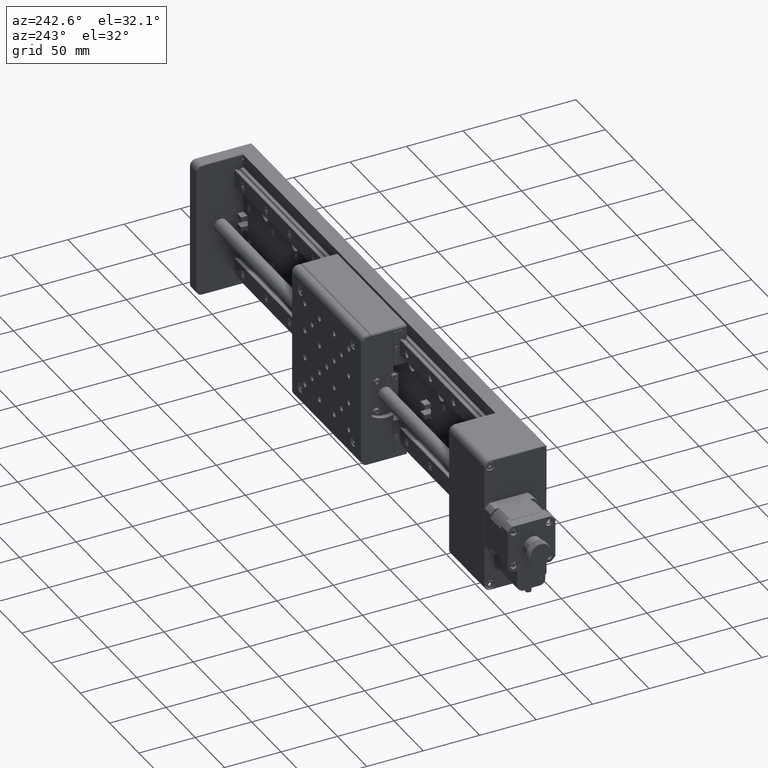
[diagram: clean part render]
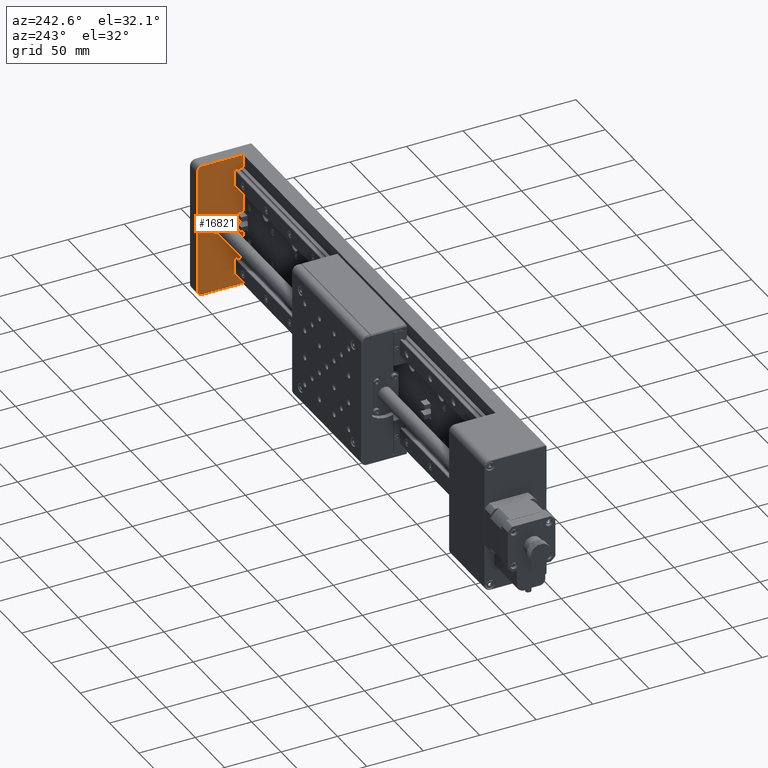
[diagram: same view with one face highlighted and labeled with its STEP entity id]
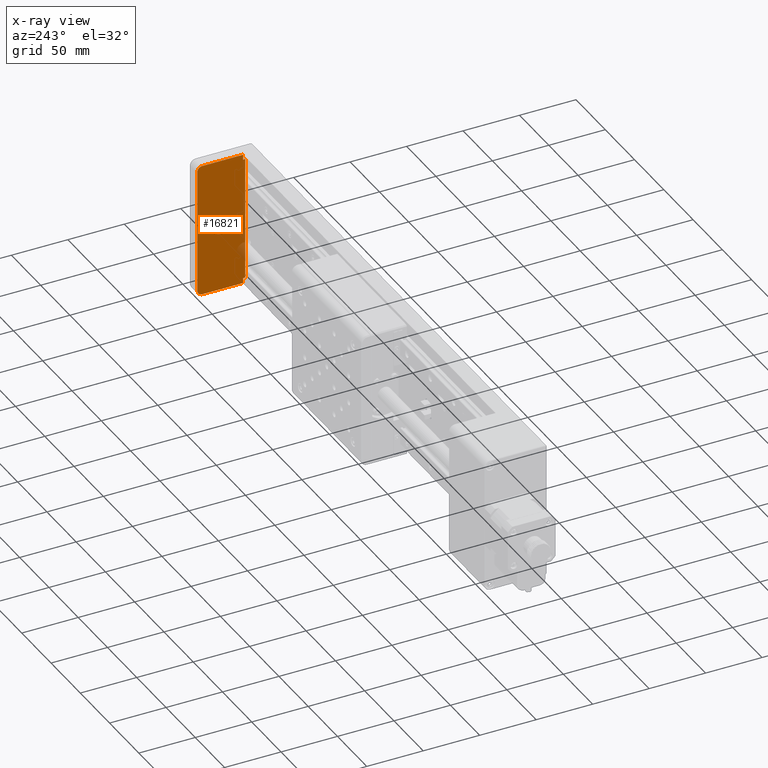
[diagram: x-ray of the same camera — body ghosted, the highlighted face saturated]
A machine part, auxiliary view. The second image highlights one B-rep face of the part: STEP entity #16821.
The next image is the same camera in x-ray: the body ghosted, the highlighted face saturated — about 2% of this face is hidden behind the body in this view.
In plain terms, the highlighted planar face has unit normal (1, -0, -0).
Its self-contained STEP definition (entity closure, byte-faithful):
#181 = ORIENTED_EDGE ( 'NONE', *, *, #17828, .T. ) ;
#255 = EDGE_CURVE ( 'NONE', #42804, #17546, #33802, .T. ) ;
#1054 = CIRCLE ( 'NONE', #6363, 8.000000000000007100 ) ;
#1984 = EDGE_CURVE ( 'NONE', #15569, #12241, #35678, .T. ) ;
#2163 = VECTOR ( 'NONE', #44795, 1000.000000000000000 ) ;
#3078 = DIRECTION ( 'NONE',  ( -1.322943490866865800E-015, -1.000000000000000000, -3.437589973766326800E-015 ) ) ;
#4096 = CARTESIAN_POINT ( 'NONE',  ( 166.6464453227609400, 13.99999999999415600, 83.66751701937290900 ) ) ;
#4594 = ORIENTED_EDGE ( 'NONE', *, *, #6169, .T. ) ;
#4870 = CARTESIAN_POINT ( 'NONE',  ( 166.6464453227623000, 54.99999999999416600, 202.6675170193729200 ) ) ;
#4909 = DIRECTION ( 'NONE',  ( -1.000000000000000000, 1.322943490866827700E-015, 1.110223024625156200E-014 ) ) ;
#6169 = EDGE_CURVE ( 'NONE', #52620, #42804, #9584, .T. ) ;
#6363 = AXIS2_PLACEMENT_3D ( 'NONE', #47443, #14320, #51509 ) ;
#6731 = PLANE ( 'NONE',  #49521 ) ;
#7122 = CIRCLE ( 'NONE', #14597, 8.000000000000007100 ) ;
#7486 = DIRECTION ( 'NONE',  ( 1.322943490866788800E-015, 1.000000000000000000, -3.501303930140951300E-015 ) ) ;
#8580 = DIRECTION ( 'NONE',  ( -1.000000000000000000, 1.322943490866827700E-015, 1.110223024625156200E-014 ) ) ;
#9296 = DIRECTION ( 'NONE',  ( 1.322943490866827300E-015, 1.000000000000000000, -3.185697818731211400E-017 ) ) ;
#9584 = LINE ( 'NONE', #13261, #23974 ) ;
#10436 = EDGE_CURVE ( 'NONE', #18526, #14642, #7122, .T. ) ;
#10800 = LINE ( 'NONE', #21105, #32404 ) ;
#11484 = CARTESIAN_POINT ( 'NONE',  ( 166.6464453227622200, 13.99999999999414700, 198.1675170193728900 ) ) ;
#11619 = CARTESIAN_POINT ( 'NONE',  ( 166.6464453227610000, 13.99999999999415800, 88.16751701937289500 ) ) ;
#11681 = EDGE_CURVE ( 'NONE', #40159, #51966, #10800, .T. ) ;
#12241 = VERTEX_POINT ( 'NONE', #41069 ) ;
#13261 = CARTESIAN_POINT ( 'NONE',  ( 166.6464453227623300, 54.49999999999416600, 203.1675170193729200 ) ) ;
#13870 = AXIS2_PLACEMENT_3D ( 'NONE', #42246, #17378, #38436 ) ;
#13967 = VERTEX_POINT ( 'NONE', #44906 ) ;
#14320 = DIRECTION ( 'NONE',  ( -1.000000000000000000, 1.322943490866827700E-015, 1.110223024625156200E-014 ) ) ;
#14597 = AXIS2_PLACEMENT_3D ( 'NONE', #19299, #8580, #30477 ) ;
#14642 = VERTEX_POINT ( 'NONE', #38260 ) ;
#14961 = LINE ( 'NONE', #32822, #27391 ) ;
#15569 = VERTEX_POINT ( 'NONE', #45764 ) ;
#16821 = ADVANCED_FACE ( 'NONE', ( #33268, #20815 ), #6731, .F. ) ;
#17367 = ORIENTED_EDGE ( 'NONE', *, *, #1984, .T. ) ;
#17378 = DIRECTION ( 'NONE',  ( -1.000000000000000000, 1.322943490866827700E-015, 1.110223024625156200E-014 ) ) ;
#17449 = ORIENTED_EDGE ( 'NONE', *, *, #33550, .T. ) ;
#17546 = VERTEX_POINT ( 'NONE', #37674 ) ;
#17828 = EDGE_CURVE ( 'NONE', #13967, #36662, #50549, .T. ) ;
#18526 = VERTEX_POINT ( 'NONE', #37378 ) ;
#18698 = LINE ( 'NONE', #50850, #32434 ) ;
#19299 = CARTESIAN_POINT ( 'NONE',  ( 166.6464453227616200, 33.99999999999417400, 143.1675170193729200 ) ) ;
#19953 = DIRECTION ( 'NONE',  ( -1.110223024625156200E-014, -3.185697818729884500E-017, -1.000000000000000000 ) ) ;
#19971 = CARTESIAN_POINT ( 'NONE',  ( 166.6464453227622200, 13.99999999999414700, 198.1675170193728900 ) ) ;
#20815 = FACE_BOUND ( 'NONE', #29864, .T. ) ;
#21105 = CARTESIAN_POINT ( 'NONE',  ( 166.6464453227610000, 13.99999999999415800, 88.16751701937289500 ) ) ;
#22935 = EDGE_CURVE ( 'NONE', #12241, #47678, #32294, .T. ) ;
#23974 = VECTOR ( 'NONE', #46761, 1000.000000000000000 ) ;
#24026 = LINE ( 'NONE', #19971, #39756 ) ;
#26450 = ORIENTED_EDGE ( 'NONE', *, *, #22935, .T. ) ;
#26992 = VECTOR ( 'NONE', #36528, 1000.000000000000000 ) ;
#27391 = VECTOR ( 'NONE', #3078, 1000.000000000000000 ) ;
#27463 = CARTESIAN_POINT ( 'NONE',  ( 166.6464453227623300, 54.99999999999416600, 203.1675170193729200 ) ) ;
#27852 = ORIENTED_EDGE ( 'NONE', *, *, #255, .T. ) ;
#29385 = ORIENTED_EDGE ( 'NONE', *, *, #10436, .F. ) ;
#29400 = EDGE_LOOP ( 'NONE', ( #52961, #17367, #26450, #17449, #4594, #27852, #33064, #35793, #44931, #181 ) ) ;
#29674 = CIRCLE ( 'NONE', #13870, 4.500000000000003600 ) ;
#29864 = EDGE_LOOP ( 'NONE', ( #44157, #29385 ) ) ;
#30477 = DIRECTION ( 'NONE',  ( 1.040834085586083300E-014, 0.0000000000000000000, 1.000000000000000000 ) ) ;
#30548 = DIRECTION ( 'NONE',  ( -1.322943490866827300E-015, -1.000000000000000000, 3.185697818731211400E-017 ) ) ;
#31694 = DIRECTION ( 'NONE',  ( 1.000000000000000000, -1.322943490866827500E-015, -1.110223024625156200E-014 ) ) ;
#32294 = LINE ( 'NONE', #4870, #33607 ) ;
#32404 = VECTOR ( 'NONE', #38491, 1000.000000000000000 ) ;
#32434 = VECTOR ( 'NONE', #30548, 1000.000000000000000 ) ;
#32822 = CARTESIAN_POINT ( 'NONE',  ( 166.6464453227610000, 13.99999999999415800, 88.16751701937289500 ) ) ;
#33064 = ORIENTED_EDGE ( 'NONE', *, *, #35275, .T. ) ;
#33268 = FACE_OUTER_BOUND ( 'NONE', #29400, .T. ) ;
#33550 = EDGE_CURVE ( 'NONE', #47678, #52620, #29674, .T. ) ;
#33607 = VECTOR ( 'NONE', #9296, 1000.000000000000000 ) ;
#33802 = CIRCLE ( 'NONE', #41811, 4.500000000000003600 ) ;
#34384 = CARTESIAN_POINT ( 'NONE',  ( 166.6464453227622800, 54.49999999999416600, 198.1675170193728900 ) ) ;
#35275 = EDGE_CURVE ( 'NONE', #17546, #40159, #18698, .T. ) ;
#35678 = LINE ( 'NONE', #11484, #2163 ) ;
#35793 = ORIENTED_EDGE ( 'NONE', *, *, #11681, .T. ) ;
#36362 = CARTESIAN_POINT ( 'NONE',  ( 166.6464453227621900, 11.99999999999416100, 198.1675170193728900 ) ) ;
#36528 = DIRECTION ( 'NONE',  ( 1.110223024625156200E-014, -9.430472915646892400E-017, 1.000000000000000000 ) ) ;
#36662 = VERTEX_POINT ( 'NONE', #37811 ) ;
#37378 = CARTESIAN_POINT ( 'NONE',  ( 166.6464453227615400, 33.99999999999417400, 135.1675170193728900 ) ) ;
#37674 = CARTESIAN_POINT ( 'NONE',  ( 166.6464453227609700, 49.99999999999415900, 83.66751701937290900 ) ) ;
#37811 = CARTESIAN_POINT ( 'NONE',  ( 166.6464453227621900, 11.99999999999416100, 198.1675170193728900 ) ) ;
#38260 = CARTESIAN_POINT ( 'NONE',  ( 166.6464453227617100, 33.99999999999417400, 151.1675170193729200 ) ) ;
#38436 = DIRECTION ( 'NONE',  ( -1.233581138472395200E-014, 0.0000000000000000000, -1.000000000000000000 ) ) ;
#38491 = DIRECTION ( 'NONE',  ( 1.110223024625156400E-014, 3.185697818729884500E-017, 1.000000000000000000 ) ) ;
#39756 = VECTOR ( 'NONE', #7486, 1000.000000000000000 ) ;
#40159 = VERTEX_POINT ( 'NONE', #4096 ) ;
#41069 = CARTESIAN_POINT ( 'NONE',  ( 166.6464453227622500, 13.99999999999414500, 202.6675170193729200 ) ) ;
#41377 = EDGE_CURVE ( 'NONE', #51966, #13967, #14961, .T. ) ;
#41811 = AXIS2_PLACEMENT_3D ( 'NONE', #46696, #4909, #47069 ) ;
#42246 = CARTESIAN_POINT ( 'NONE',  ( 166.6464453227622500, 49.99999999999415900, 198.1675170193728900 ) ) ;
#42804 = VERTEX_POINT ( 'NONE', #48538 ) ;
#44157 = ORIENTED_EDGE ( 'NONE', *, *, #50216, .F. ) ;
#44795 = DIRECTION ( 'NONE',  ( 1.110223024625156400E-014, -2.284205706144469800E-016, 1.000000000000000000 ) ) ;
#44906 = CARTESIAN_POINT ( 'NONE',  ( 166.6464453227609700, 11.99999999999417200, 88.16751701937289500 ) ) ;
#44931 = ORIENTED_EDGE ( 'NONE', *, *, #41377, .T. ) ;
#45764 = CARTESIAN_POINT ( 'NONE',  ( 166.6464453227622200, 13.99999999999414700, 198.1675170193728900 ) ) ;
#46092 = EDGE_CURVE ( 'NONE', #36662, #15569, #24026, .T. ) ;
#46696 = CARTESIAN_POINT ( 'NONE',  ( 166.6464453227610200, 49.99999999999415900, 88.16751701937289500 ) ) ;
#46761 = DIRECTION ( 'NONE',  ( -1.110223024625156200E-014, -3.185697818729884500E-017, -1.000000000000000000 ) ) ;
#47069 = DIRECTION ( 'NONE',  ( -1.233581138472395200E-014, 0.0000000000000000000, -1.000000000000000000 ) ) ;
#47443 = CARTESIAN_POINT ( 'NONE',  ( 166.6464453227616200, 33.99999999999417400, 143.1675170193729200 ) ) ;
#47678 = VERTEX_POINT ( 'NONE', #53812 ) ;
#48538 = CARTESIAN_POINT ( 'NONE',  ( 166.6464453227610500, 54.49999999999415900, 88.16751701937289500 ) ) ;
#49521 = AXIS2_PLACEMENT_3D ( 'NONE', #27463, #31694, #19953 ) ;
#50216 = EDGE_CURVE ( 'NONE', #14642, #18526, #1054, .T. ) ;
#50549 = LINE ( 'NONE', #36362, #26992 ) ;
#50850 = CARTESIAN_POINT ( 'NONE',  ( 166.6464453227610000, 54.99999999999415900, 83.66751701937290900 ) ) ;
#51509 = DIRECTION ( 'NONE',  ( 1.040834085586083300E-014, 0.0000000000000000000, 1.000000000000000000 ) ) ;
#51966 = VERTEX_POINT ( 'NONE', #11619 ) ;
#52620 = VERTEX_POINT ( 'NONE', #34384 ) ;
#52961 = ORIENTED_EDGE ( 'NONE', *, *, #46092, .T. ) ;
#53812 = CARTESIAN_POINT ( 'NONE',  ( 166.6464453227623000, 49.99999999999416600, 202.6675170193729200 ) ) ;